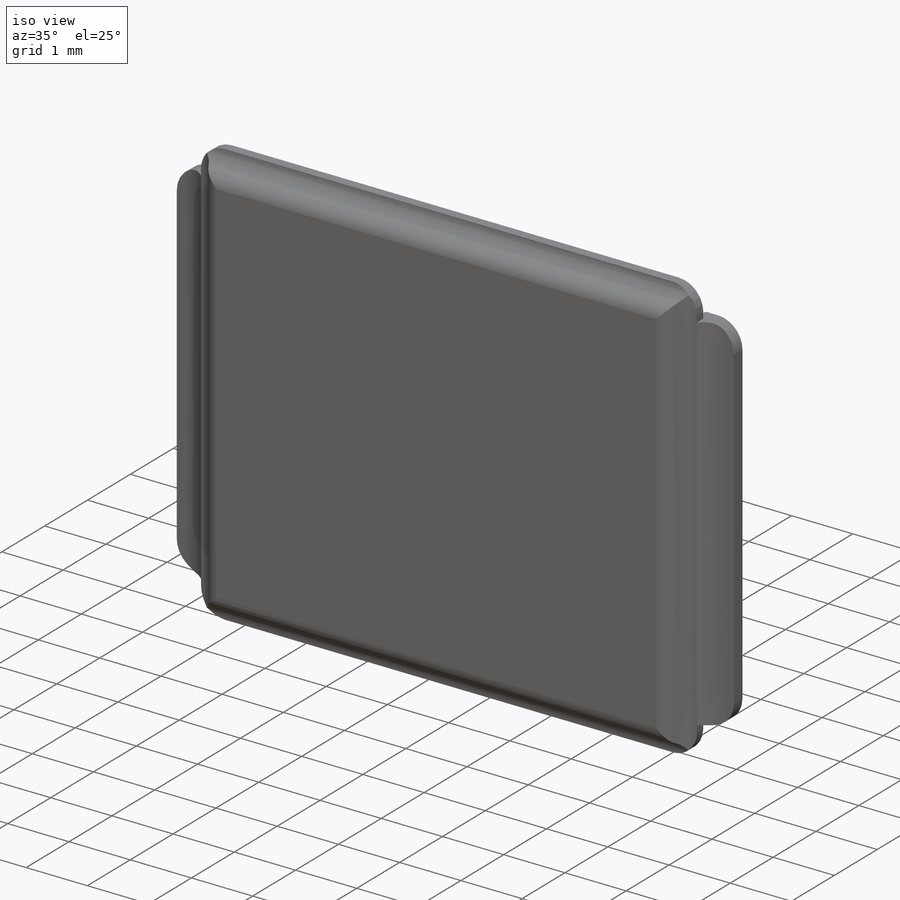
[diagram: iso view]
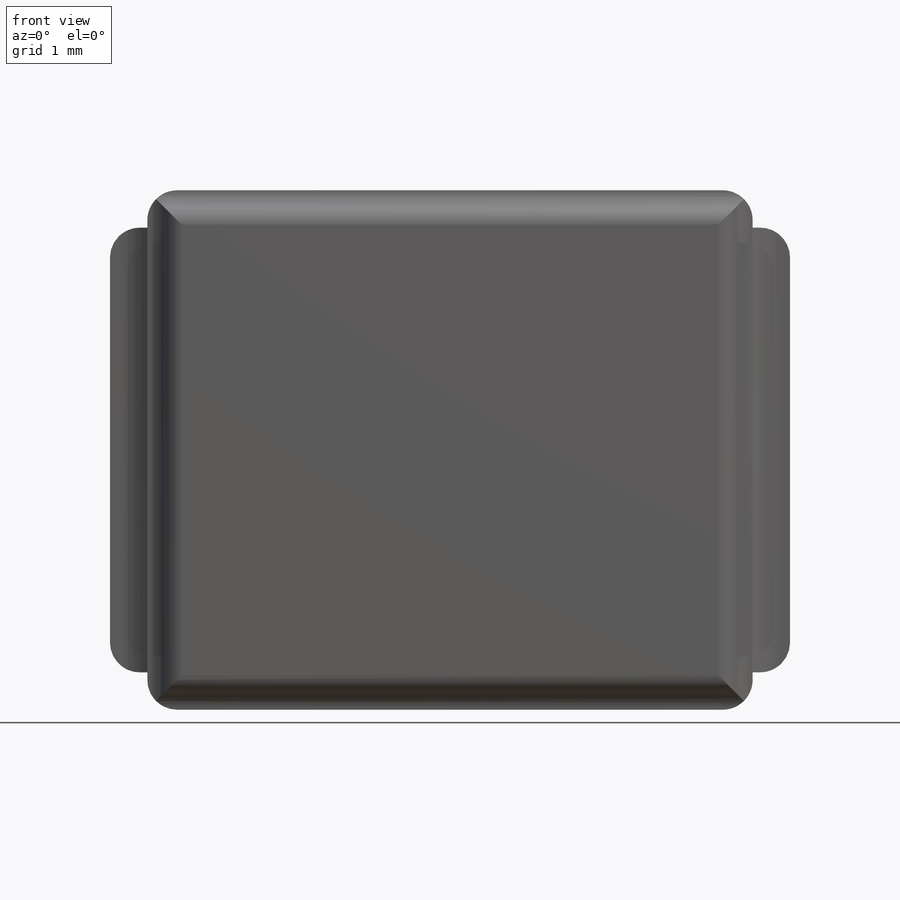
[diagram: front view]
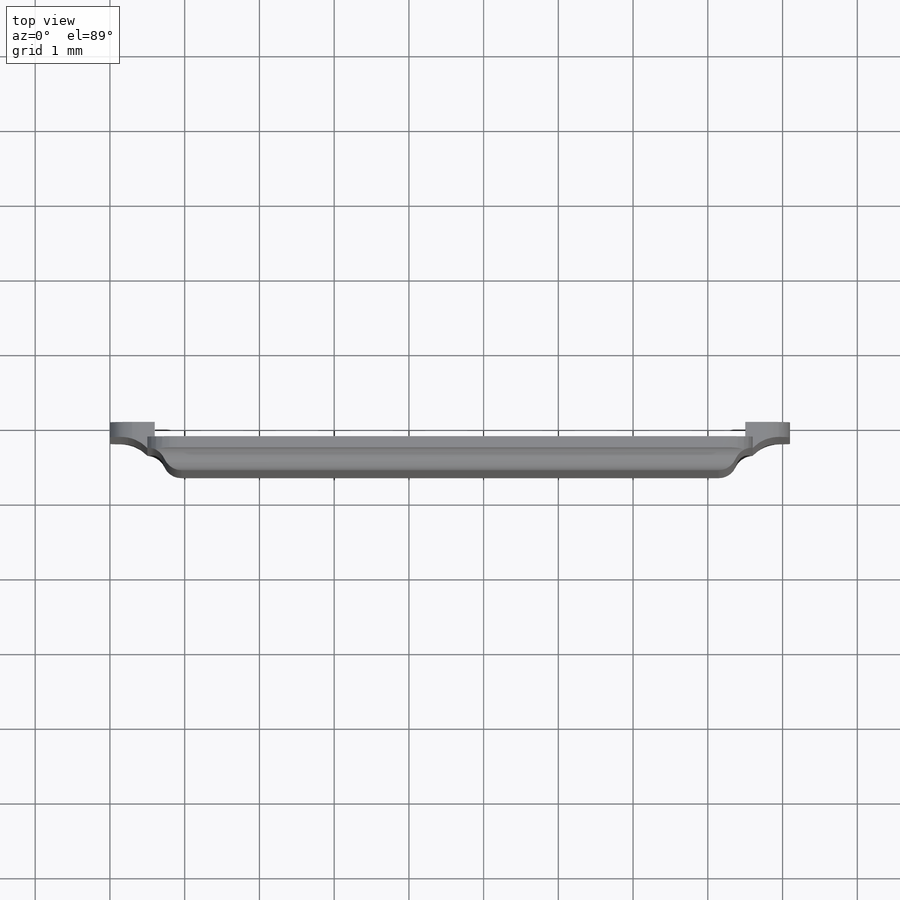
[diagram: top view]
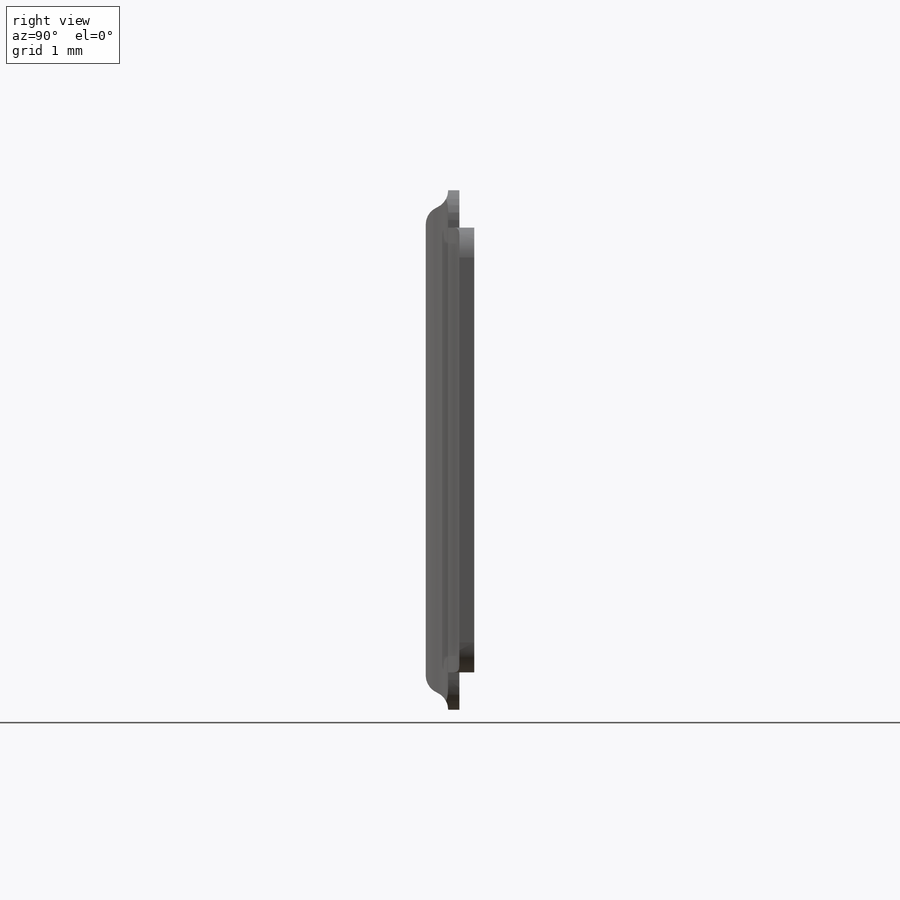
[diagram: right view]
SOLIDWORKS PART (.sldprt)
format: sldprt  version: not decoded by parser v0  size: 268,288 bytes
history: native  units: mm
features: fillet x7, sketch x3, extrude x3, material x1 (+13 scaffold rows collapsed)
feature tree (27):
  scaffold x13  (default folders/planes/origin — collapsed)
  material  "Material <not specified>"
  sketch  "Sketch1"  dims[c1.D1=5.95mm c1.D2=0.6mm c2.D1=5.95mm c2.D2=0.6mm c3.D1=~1.756358mm c3.D2=~0.820635mm c4.D1=5.95mm c4.D2=0.6mm]
  extrude  "Boss-Extrude1"  Depth=0.2mm
  sketch  "Sketch2"  dims[c1.D1=~6.662336mm c1.D2=~1.449126mm c2.D1=~6.662336mm c2.D2=~1.449126mm c3.D1=6.95mm c3.D2=0.6mm c4.D1=6.7mm]
  extrude  "Boss-Extrude2"  Depth=0.15mm
  fillet  "Fillet1"  Radius=0.5mm
  fillet  "Fillet2"  Radius=0.5mm
  sketch  "Sketch3"  dims[c1.D1=6.95mm c1.D2=8.1mm c2.D1=~6.54424mm c2.D2=~7.550004mm c3.D1=6.45mm c3.D2=7.6mm]
  extrude  "Boss-Extrude3"  Depth=0.3mm
  fillet  "Fillet3"  Radius=0.25mm
  fillet  "Fillet4"  Radius=0.25mm
  fillet  "Fillet5"  Radius=0.25mm
  fillet  "Fillet6"  Radius=0.25mm
  fillet  "Fillet7"  Radius=0.4mm
decode coverage: 13 of 13 modeling features carry decoded parameters
note: ~ marks probable driven/reference dimensions
note: suppression state not decoded; provenance and decode notes live in map.json
